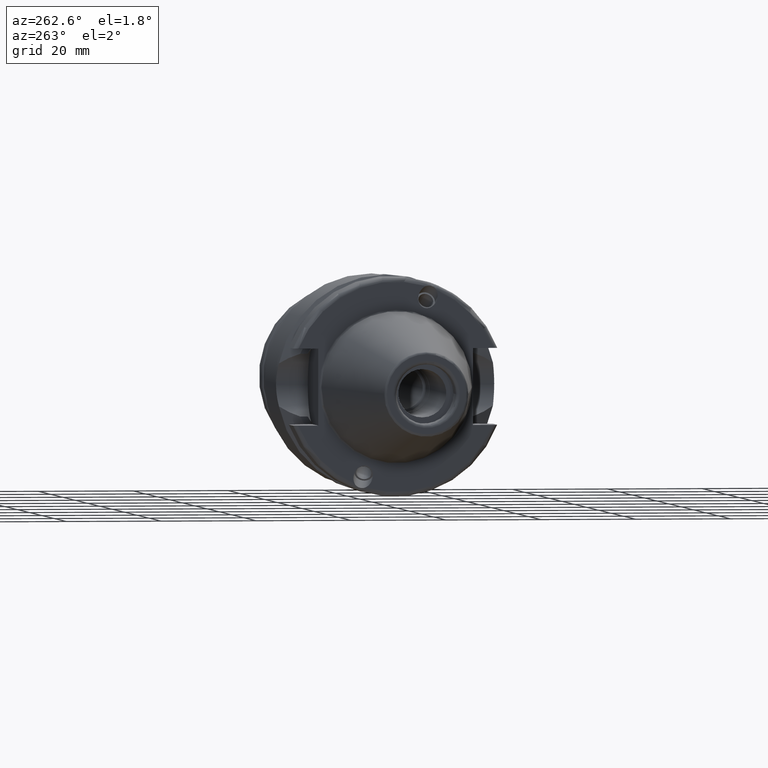
[diagram: clean part render]
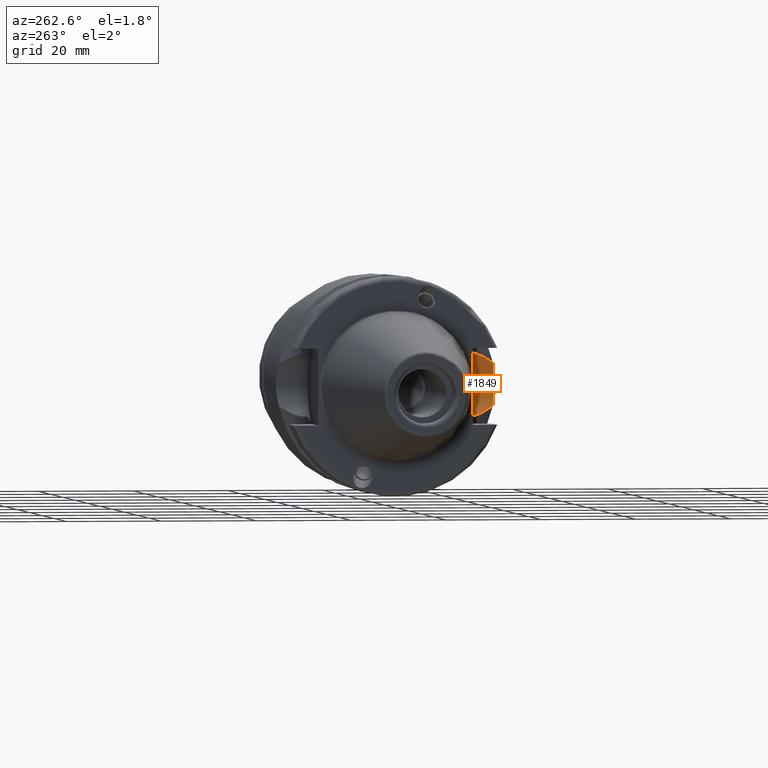
[diagram: same view with one face highlighted and labeled with its STEP entity id]
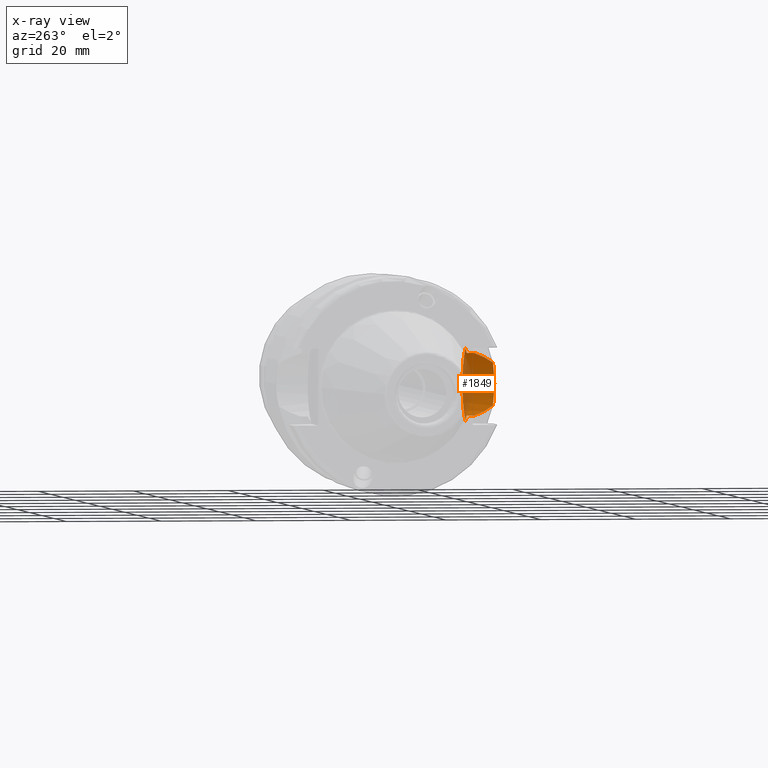
[diagram: x-ray of the same camera — body ghosted, the highlighted face saturated]
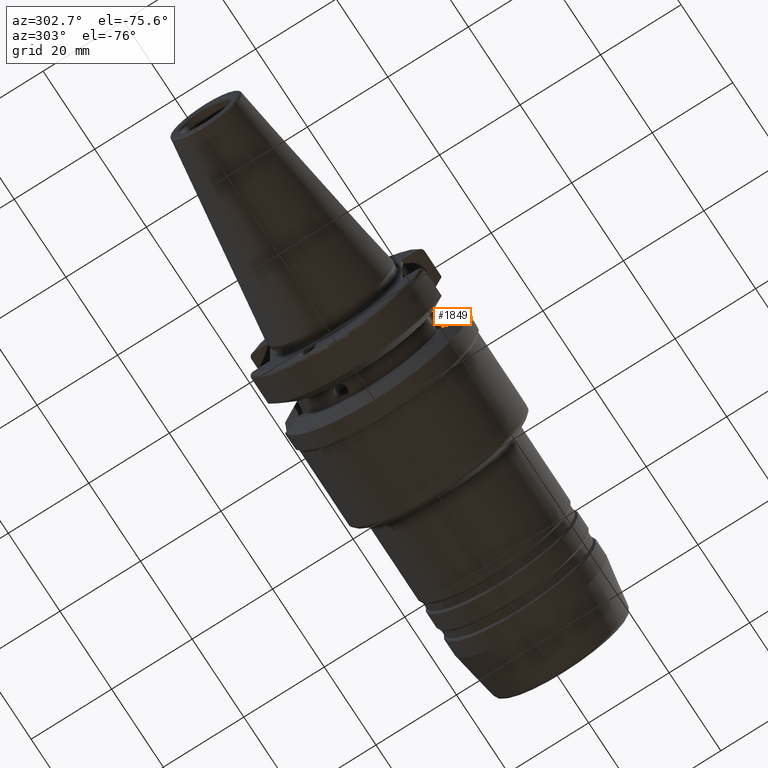
[diagram: same view with one face highlighted and labeled with its STEP entity id]
A machine part, auxiliary view. The second image highlights one B-rep face of the part: STEP entity #1849.
The next image is the same camera in x-ray: the body ghosted, the highlighted face saturated — about 26% of this face is hidden behind the body in this view.
A second angle (auxiliary view) of the same face is appended — the face is thin or edge-on in the first view.
In plain terms, the highlighted cylindrical surface (partial cylindrical patch) has radius 8.05 mm, axis along (0, 1, 0).
Its self-contained STEP definition (entity closure, byte-faithful):
#169=FACE_OUTER_BOUND('',#274,.T.);
#274=EDGE_LOOP('',(#1537,#1538,#1539,#1540,#1541,#1542,#1543,#1544,#1545));
#320=B_SPLINE_CURVE_WITH_KNOTS('',3,(#3235,#3236,#3237,#3238,#3239,#3240),
 .UNSPECIFIED.,.F.,.F.,(4,2,4),(0.251736951228421,0.308302866903479,0.47992483953375),
 .UNSPECIFIED.);
#326=B_SPLINE_CURVE_WITH_KNOTS('',3,(#3361,#3362,#3363,#3364,#3365,#3366),
 .UNSPECIFIED.,.F.,.F.,(4,2,4),(1.98446312068074,2.15608509331101,2.21265100898607),
 .UNSPECIFIED.);
#330=B_SPLINE_CURVE_WITH_KNOTS('',3,(#3476,#3477,#3478,#3479,#3480,#3481),
 .UNSPECIFIED.,.F.,.F.,(4,2,4),(7.68395213088373,8.02991733611869,8.17688748303414),
 .UNSPECIFIED.);
#331=B_SPLINE_CURVE_WITH_KNOTS('',3,(#3483,#3484,#3485,#3486,#3487,#3488),
 .UNSPECIFIED.,.F.,.F.,(4,2,4),(1.22422978521585,1.53019992929475,1.68242086035696),
 .UNSPECIFIED.);
#332=B_SPLINE_CURVE_WITH_KNOTS('',3,(#3490,#3491,#3492,#3493,#3494,#3495),
 .UNSPECIFIED.,.F.,.F.,(4,2,4),(0.766038710074735,0.918259641136944,1.22422978521585),
 .UNSPECIFIED.);
#333=B_SPLINE_CURVE_WITH_KNOTS('',3,(#3497,#3498,#3499,#3500,#3501,#3502),
 .UNSPECIFIED.,.F.,.F.,(4,2,4),(9.25978800315029,9.40675815006574,9.7527233553007),
 .UNSPECIFIED.);
#389=LINE('',#3474,#464);
#390=LINE('',#3503,#465);
#464=VECTOR('',#2647,10.);
#465=VECTOR('',#2648,10.);
#614=CIRCLE('',#2109,8.05);
#755=VERTEX_POINT('',#3232);
#756=VERTEX_POINT('',#3234);
#778=VERTEX_POINT('',#3358);
#779=VERTEX_POINT('',#3360);
#811=VERTEX_POINT('',#3473);
#812=VERTEX_POINT('',#3475);
#813=VERTEX_POINT('',#3482);
#814=VERTEX_POINT('',#3489);
#815=VERTEX_POINT('',#3496);
#998=EDGE_CURVE('',#755,#756,#320,.T.);
#1030=EDGE_CURVE('',#778,#779,#326,.T.);
#1071=EDGE_CURVE('',#811,#778,#389,.T.);
#1072=EDGE_CURVE('',#811,#812,#330,.T.);
#1073=EDGE_CURVE('',#813,#812,#331,.T.);
#1074=EDGE_CURVE('',#814,#813,#332,.T.);
#1075=EDGE_CURVE('',#814,#815,#333,.T.);
#1076=EDGE_CURVE('',#756,#815,#390,.T.);
#1077=EDGE_CURVE('',#755,#779,#614,.T.);
#1537=ORIENTED_EDGE('',*,*,#1030,.F.);
#1538=ORIENTED_EDGE('',*,*,#1071,.F.);
#1539=ORIENTED_EDGE('',*,*,#1072,.T.);
#1540=ORIENTED_EDGE('',*,*,#1073,.F.);
#1541=ORIENTED_EDGE('',*,*,#1074,.F.);
#1542=ORIENTED_EDGE('',*,*,#1075,.T.);
#1543=ORIENTED_EDGE('',*,*,#1076,.F.);
#1544=ORIENTED_EDGE('',*,*,#998,.F.);
#1545=ORIENTED_EDGE('',*,*,#1077,.T.);
#1777=CYLINDRICAL_SURFACE('',#2108,8.05);
#1849=ADVANCED_FACE('',(#169),#1777,.F.);
#2108=AXIS2_PLACEMENT_3D('',#3472,#2645,#2646);
#2109=AXIS2_PLACEMENT_3D('',#3504,#2649,#2650);
#2645=DIRECTION('center_axis',(0.,1.,0.));
#2646=DIRECTION('ref_axis',(0.,0.,1.));
#2647=DIRECTION('',(0.,1.,0.));
#2648=DIRECTION('',(0.,-1.,0.));
#2649=DIRECTION('center_axis',(0.,1.,0.));
#2650=DIRECTION('ref_axis',(0.,0.,1.));
#3232=CARTESIAN_POINT('',(13.4980384612482,-16.3,7.636098480245));
#3234=CARTESIAN_POINT('',(15.6,-16.757684804292,6.57114906237867));
#3235=CARTESIAN_POINT('Ctrl Pts',(13.4980384612482,-16.3,7.636098480245));
#3236=CARTESIAN_POINT('Ctrl Pts',(13.6847796623189,-16.329191641879,7.57378606195196));
#3237=CARTESIAN_POINT('Ctrl Pts',(13.8692695970121,-16.3611703468843,7.50459986516079));
#3238=CARTESIAN_POINT('Ctrl Pts',(14.6012065414299,-16.4995936761885,7.19909968210666));
#3239=CARTESIAN_POINT('Ctrl Pts',(15.1240022455652,-16.6256027426008,6.90798353944051));
#3240=CARTESIAN_POINT('Ctrl Pts',(15.6,-16.757684804292,6.57114906237867));
#3358=CARTESIAN_POINT('',(15.6,-16.757684804292,-6.57114906237867));
#3360=CARTESIAN_POINT('',(13.4980384612482,-16.3,-7.636098480245));
#3361=CARTESIAN_POINT('Ctrl Pts',(15.6,-16.757684804292,-6.57114906237867));
#3362=CARTESIAN_POINT('Ctrl Pts',(15.1240022455652,-16.6256027426008,-6.90798353944051));
#3363=CARTESIAN_POINT('Ctrl Pts',(14.6012065414299,-16.4995936761885,-7.19909968210666));
#3364=CARTESIAN_POINT('Ctrl Pts',(13.8692695970121,-16.3611703468843,-7.5045998651608));
#3365=CARTESIAN_POINT('Ctrl Pts',(13.6847796623189,-16.329191641879,-7.57378606195196));
#3366=CARTESIAN_POINT('Ctrl Pts',(13.4980384612482,-16.3,-7.636098480245));
#3472=CARTESIAN_POINT('Origin',(10.95,-16.3,0.));
#3473=CARTESIAN_POINT('',(15.6,-18.3236233917175,-6.57114906237867));
#3474=CARTESIAN_POINT('',(15.6,-16.3,-6.57114906237867));
#3475=CARTESIAN_POINT('',(17.6299409595063,-22.5570191120744,-4.49231441213885));
#3476=CARTESIAN_POINT('Ctrl Pts',(15.6,-18.3236233917175,-6.57114906237867));
#3477=CARTESIAN_POINT('Ctrl Pts',(16.1098572405085,-19.3959223553921,-6.21035429941431));
#3478=CARTESIAN_POINT('Ctrl Pts',(16.6013448473778,-20.4213600687136,-5.77346727707879));
#3479=CARTESIAN_POINT('Ctrl Pts',(17.2377433516599,-21.744048580855,-5.03500381733928));
#3480=CARTESIAN_POINT('Ctrl Pts',(17.4363948664282,-22.1561594342104,-4.78011182703288));
#3481=CARTESIAN_POINT('Ctrl Pts',(17.6299409595063,-22.5570191120744,-4.49231441213885));
#3482=CARTESIAN_POINT('',(19.,-23.,-2.10223320941018E-15));
#3483=CARTESIAN_POINT('Ctrl Pts',(19.,-23.,-1.38777878078145E-15));
#3484=CARTESIAN_POINT('Ctrl Pts',(19.,-23.,-1.01990048026301));
#3485=CARTESIAN_POINT('Ctrl Pts',(18.7944172124482,-22.9255444052516,-2.10203503507381));
#3486=CARTESIAN_POINT('Ctrl Pts',(18.177239764242,-22.7242805076598,-3.58529925507118));
#3487=CARTESIAN_POINT('Ctrl Pts',(17.9228644767949,-22.6437642529734,-4.05674565589789));
#3488=CARTESIAN_POINT('Ctrl Pts',(17.6299409595063,-22.5570191120744,-4.49231441213885));
#3489=CARTESIAN_POINT('',(17.6299409595063,-22.5570191120744,4.49231441213885));
#3490=CARTESIAN_POINT('Ctrl Pts',(17.6299409595063,-22.5570191120744,4.49231441213885));
#3491=CARTESIAN_POINT('Ctrl Pts',(17.9228644767949,-22.6437642529734,4.05674565589789));
#3492=CARTESIAN_POINT('Ctrl Pts',(18.177239764242,-22.7242805076598,3.58529925507118));
#3493=CARTESIAN_POINT('Ctrl Pts',(18.7944172124482,-22.9255444052516,2.10203503507381));
#3494=CARTESIAN_POINT('Ctrl Pts',(19.,-23.,1.01990048026301));
#3495=CARTESIAN_POINT('Ctrl Pts',(19.,-23.,-1.38777878078145E-15));
#3496=CARTESIAN_POINT('',(15.6,-18.3236233917175,6.57114906237867));
#3497=CARTESIAN_POINT('Ctrl Pts',(17.6299409595063,-22.5570191120744,4.49231441213885));
#3498=CARTESIAN_POINT('Ctrl Pts',(17.4363948664282,-22.1561594342104,4.78011182703289));
#3499=CARTESIAN_POINT('Ctrl Pts',(17.2377433516599,-21.7440485808551,5.03500381733927));
#3500=CARTESIAN_POINT('Ctrl Pts',(16.6013448473778,-20.4213600687136,5.77346727707879));
#3501=CARTESIAN_POINT('Ctrl Pts',(16.1098572405085,-19.3959223553921,6.21035429941431));
#3502=CARTESIAN_POINT('Ctrl Pts',(15.6,-18.3236233917175,6.57114906237867));
#3503=CARTESIAN_POINT('',(15.6,-16.3,6.57114906237867));
#3504=CARTESIAN_POINT('Origin',(10.95,-16.3,0.));